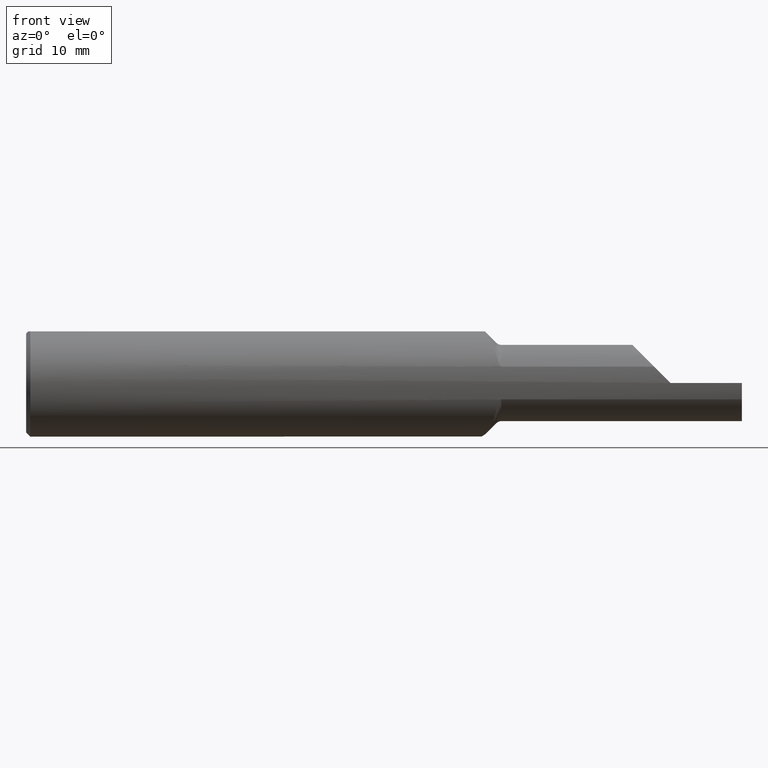
[diagram: clean part render]
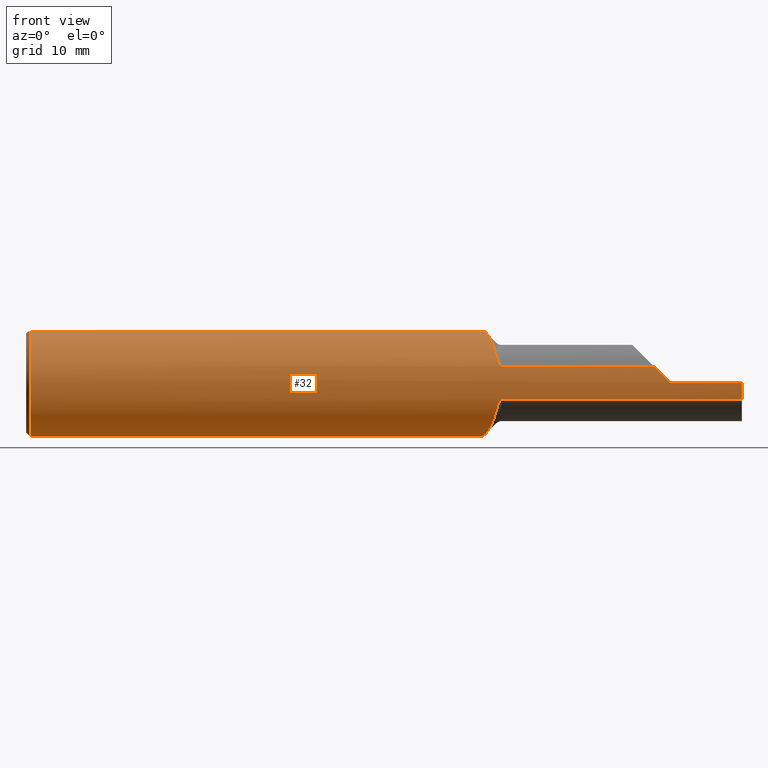
[diagram: same view with one face highlighted and labeled with its STEP entity id]
A machine part, front view. The second image highlights one B-rep face of the part: STEP entity #32.
In plain terms, the highlighted cylindrical surface (partial cylindrical patch) has radius 4.7587 mm, axis along (-1, -0, -0).
Its self-contained STEP definition (entity closure, byte-faithful):
#1 = VERTEX_POINT ( 'NONE', #487 ) ;
#3 = CARTESIAN_POINT ( 'NONE',  ( 1.660355339059327306, -0.1783697086546703892, -0.05730854678359931925 ) ) ;
#8 = CARTESIAN_POINT ( 'NONE',  ( 0.01500000000000079568, 0.000000000000000000, 0.000000000000000000 ) ) ;
#20 = CARTESIAN_POINT ( 'NONE',  ( 1.640253514619542052, -0.1553904236379950454, -0.1052844192764661180 ) ) ;
#23 = CARTESIAN_POINT ( 'NONE',  ( 0.01500000000000079568, 0.000000000000000000, -0.1873499999999999888 ) ) ;
#24 = LINE ( 'NONE', #95, #974 ) ;
#28 = AXIS2_PLACEMENT_3D ( 'NONE', #1058, #917, #246 ) ;
#32 = ADVANCED_FACE ( 'NONE', ( #580 ), #418, .T. ) ;
#33 = CARTESIAN_POINT ( 'NONE',  ( 1.651070010791237941, -0.1744205134096490917, 0.06848301048429156213 ) ) ;
#34 = CARTESIAN_POINT ( 'NONE',  ( 1.556401947506067307, 0.1100286960033596273, -0.1517643969169448492 ) ) ;
#40 = LINE ( 'NONE', #217, #394 ) ;
#43 = CARTESIAN_POINT ( 'NONE',  ( 1.659353365409087733, -0.1783697086546703614, 0.05730854678359929150 ) ) ;
#44 = CIRCLE ( 'NONE', #269, 0.1873499999999999888 ) ;
#50 = CARTESIAN_POINT ( 'NONE',  ( 1.642677669529663653, -0.1612201248618145288, 0.09543633395903748651 ) ) ;
#51 = CARTESIAN_POINT ( 'NONE',  ( 1.575940143936352289, 0.03734480488786581787, -0.1840042851911080080 ) ) ;
#52 = B_SPLINE_CURVE_WITH_KNOTS ( 'NONE', 3,
 ( #180, #513, #849, #1047, #122, #292, #197, #787, #528, #873 ),
 .UNSPECIFIED., .F., .F.,
 ( 4, 2, 2, 2, 4 ),
 ( 0.0002102370372012421680, 0.001095323943326031047, 0.001980410849450820170, 0.002865497755575608860, 0.003750584661700397983 ),
 .UNSPECIFIED. ) ;
#58 = CARTESIAN_POINT ( 'NONE',  ( 1.586382994110499212, 0.001209398411742338125, -0.1877358743806105124 ) ) ;
#69 = CARTESIAN_POINT ( 'NONE',  ( 1.540172451185788161, 0.1753186121875665027, 0.06724932333031378995 ) ) ;
#70 = CARTESIAN_POINT ( 'NONE',  ( 1.604144082012933792, -0.05583534595055380384, 0.1788559179870659044 ) ) ;
#89 = DIRECTION ( 'NONE',  ( 0.000000000000000000, 0.000000000000000000, -1.000000000000000000 ) ) ;
#95 = CARTESIAN_POINT ( 'NONE',  ( 2.015000000000000124, -0.1783697086546703892, 0.05730854678359931925 ) ) ;
#100 = CARTESIAN_POINT ( 'NONE',  ( 1.642677669529665652, -0.1612201248618108651, -0.09543633395904418948 ) ) ;
#102 = CARTESIAN_POINT ( 'NONE',  ( 1.644297910623151004, -0.1651165431336509282, -0.08885413392850002867 ) ) ;
#107 = CARTESIAN_POINT ( 'NONE',  ( 1.602489247483494861, -0.05073361804563106953, 0.1803500000000000381 ) ) ;
#114 = EDGE_CURVE ( 'NONE', #554, #823, #24, .T. ) ;
#116 = AXIS2_PLACEMENT_3D ( 'NONE', #8, #676, #436 ) ;
#122 = CARTESIAN_POINT ( 'NONE',  ( 1.622098171548490342, -0.1081911845720502224, 0.1533658358000759558 ) ) ;
#126 = DIRECTION ( 'NONE',  ( -1.000000000000000000, -0.000000000000000000, -0.000000000000000000 ) ) ;
#129 = CARTESIAN_POINT ( 'NONE',  ( 1.658430780961237527, -0.1782286057343102359, 0.05774920339049800094 ) ) ;
#135 = VERTEX_POINT ( 'NONE', #1020 ) ;
#136 = CARTESIAN_POINT ( 'NONE',  ( 1.579350153915703547, 0.02533118765943560141, -0.1860229881109675409 ) ) ;
#138 = VERTEX_POINT ( 'NONE', #596 ) ;
#143 = VERTEX_POINT ( 'NONE', #687 ) ;
#146 = CARTESIAN_POINT ( 'NONE',  ( 1.550080258543535372, 0.1348995831369800835, 0.1306165108605437941 ) ) ;
#155 = CARTESIAN_POINT ( 'NONE',  ( 1.537801414367355735, 0.1852400666705823484, 0.03079028734493004585 ) ) ;
#162 = CARTESIAN_POINT ( 'NONE',  ( 1.602489247483494861, -0.05073361804563106953, 0.1803500000000000381 ) ) ;
#178 = CARTESIAN_POINT ( 'NONE',  ( 1.608423102835126128, -0.06889107032234724481, -0.1745768971648735401 ) ) ;
#180 = CARTESIAN_POINT ( 'NONE',  ( 1.604968261256594531, -0.05834999999999980480, 0.1780317387434050824 ) ) ;
#197 = CARTESIAN_POINT ( 'NONE',  ( 1.631692117238095818, -0.1338399153164696320, 0.1315807004239949174 ) ) ;
#202 = CARTESIAN_POINT ( 'NONE',  ( 1.552626747636566718, 0.1247708322425330058, -0.1403109275308249970 ) ) ;
#207 = CARTESIAN_POINT ( 'NONE',  ( 1.537709081643609199, 0.1856286585800343558, -0.02610982525124901088 ) ) ;
#209 = ORIENTED_EDGE ( 'NONE', *, *, #653, .F. ) ;
#210 = CARTESIAN_POINT ( 'NONE',  ( 1.656875481135652528, -0.1778427423524751860, 0.05892677987795050254 ) ) ;
#214 = CARTESIAN_POINT ( 'NONE',  ( 1.653568594541375170, -0.1762593147278525563, 0.06352779236237583727 ) ) ;
#217 = CARTESIAN_POINT ( 'NONE',  ( 2.500000000000000000, -0.05073361804563106953, 0.1803500000000000381 ) ) ;
#218 = CIRCLE ( 'NONE', #28, 0.1873499999999999888 ) ;
#223 = CARTESIAN_POINT ( 'NONE',  ( 1.537216210840755659, 0.1877021456528152055, 0.005461557674737466984 ) ) ;
#241 = CARTESIAN_POINT ( 'NONE',  ( 1.565888065801315898, 0.07390163537251719095, 0.1726011362085436152 ) ) ;
#246 = DIRECTION ( 'NONE',  ( 0.000000000000000000, 0.000000000000000000, -1.000000000000000000 ) ) ;
#250 = CARTESIAN_POINT ( 'NONE',  ( 1.651088181464120952, -0.1744387181921878693, -0.06843700474515748700 ) ) ;
#262 = CARTESIAN_POINT ( 'NONE',  ( 1.618767343164416506, -0.09892104215541576429, -0.1594977428790703700 ) ) ;
#269 = AXIS2_PLACEMENT_3D ( 'NONE', #1077, #663, #89 ) ;
#281 = CARTESIAN_POINT ( 'NONE',  ( 1.597483243306722311, -0.03515109766243801337, -0.1844245065291032493 ) ) ;
#286 = CARTESIAN_POINT ( 'NONE',  ( 1.538563873827742734, 0.1820409455122642406, -0.04473493752744744922 ) ) ;
#292 = CARTESIAN_POINT ( 'NONE',  ( 1.628598829545118809, -0.1257548260562134090, 0.1393274407047326302 ) ) ;
#299 = DIRECTION ( 'NONE',  ( -1.000000000000000000, -0.000000000000000000, -0.000000000000000000 ) ) ;
#302 = EDGE_CURVE ( 'NONE', #143, #593, #556, .T. ) ;
#308 = ORIENTED_EDGE ( 'NONE', *, *, #302, .F. ) ;
#315 = CARTESIAN_POINT ( 'NONE',  ( 2.250000000000000000, -0.1873488724278853934, 0.0006500000000000633960 ) ) ;
#323 = CARTESIAN_POINT ( 'NONE',  ( 1.642677669529663653, -0.1612201248618145288, 0.09543633395903748651 ) ) ;
#330 = ORIENTED_EDGE ( 'NONE', *, *, #1045, .T. ) ;
#349 = CARTESIAN_POINT ( 'NONE',  ( 1.637558038309074870, -0.1487564718944882347, -0.1144511678342007427 ) ) ;
#368 = CARTESIAN_POINT ( 'NONE',  ( 1.544523128465643547, 0.1573629312742697017, -0.1024417037855123169 ) ) ;
#375 = CARTESIAN_POINT ( 'NONE',  ( 1.601217303120553437, -0.04690544817629504343, -0.1817826968794463982 ) ) ;
#388 = CARTESIAN_POINT ( 'NONE',  ( 1.541376529822215957, 0.1703085496625235118, 0.07907260733930798757 ) ) ;
#393 = DIRECTION ( 'NONE',  ( -1.000000000000000000, -0.000000000000000000, -0.000000000000000000 ) ) ;
#394 = VECTOR ( 'NONE', #126, 39.37007874015748143 ) ;
#404 = CARTESIAN_POINT ( 'NONE',  ( 2.193341453216400616, -0.1783697086546704724, 0.05730854678359917354 ) ) ;
#409 = CARTESIAN_POINT ( 'NONE',  ( 1.568968547943675240, 0.06250301213542802659, 0.1770391935437745090 ) ) ;
#415 = CARTESIAN_POINT ( 'NONE',  ( 1.649768993697487085, -0.1730593490829002434, -0.07186319716290832937 ) ) ;
#416 = B_SPLINE_CURVE_WITH_KNOTS ( 'NONE', 3,
 ( #162, #492, #70, #831 ),
 .UNSPECIFIED., .F., .F.,
 ( 4, 4 ),
 ( 7.627425471845128801E-07, 0.0002102370372012421680 ),
 .UNSPECIFIED. ) ;
#418 = CYLINDRICAL_SURFACE ( 'NONE', #955, 0.1873499999999999888 ) ;
#422 = EDGE_CURVE ( 'NONE', #1074, #527, #416, .T. ) ;
#426 = CARTESIAN_POINT ( 'NONE',  ( 1.628571360006487279, -0.1256812272418073029, -0.1393892198534538995 ) ) ;
#432 = CARTESIAN_POINT ( 'NONE',  ( 1.611924480952844574, -0.07925979411789339790, -0.1701257993398437030 ) ) ;
#435 = CARTESIAN_POINT ( 'NONE',  ( 1.654519358739342305, -0.1768576582156871357, -0.06183736089970497118 ) ) ;
#436 = DIRECTION ( 'NONE',  ( 0.000000000000000000, 0.000000000000000000, -1.000000000000000000 ) ) ;
#438 = VERTEX_POINT ( 'NONE', #735 ) ;
#443 = CARTESIAN_POINT ( 'NONE',  ( 1.566243151538837974, 0.07258185416455241457, -0.1731530736261578940 ) ) ;
#448 = CARTESIAN_POINT ( 'NONE',  ( 1.561874062265818930, 0.08903011435619233305, -0.1649581271952395289 ) ) ;
#451 = EDGE_CURVE ( 'NONE', #906, #438, #650, .T. ) ;
#452 = CARTESIAN_POINT ( 'NONE',  ( 1.644298152198937935, -0.1651171240844257482, 0.08885315253124452528 ) ) ;
#467 = CARTESIAN_POINT ( 'NONE',  ( 1.569337034764407557, 0.06115010668878911870, -0.1775186634490950599 ) ) ;
#469 = ORIENTED_EDGE ( 'NONE', *, *, #745, .F. ) ;
#471 = B_SPLINE_CURVE_WITH_KNOTS ( 'NONE', 3,
 ( #100, #102, #923, #415, #250, #752, #435, #1008, #933, #1021, #843, #3 ),
 .UNSPECIFIED., .F., .F.,
 ( 4, 2, 2, 2, 2, 4 ),
 ( 0.000000000000000000, 0.0005951497663342988648, 0.0008927246495014492730, 0.001041512091085023935, 0.001115905811876804869, 0.001190299532668586020 ),
 .UNSPECIFIED. ) ;
#478 = VERTEX_POINT ( 'NONE', #480 ) ;
#479 = CARTESIAN_POINT ( 'NONE',  ( 1.572226761124839500, 0.05073361804563112504, 0.1803500000000000381 ) ) ;
#480 = CARTESIAN_POINT ( 'NONE',  ( 2.250000000000000000, -0.1873488724278853934, 0.0006500000000000633960 ) ) ;
#482 = DIRECTION ( 'NONE',  ( 0.000000000000000000, 0.000000000000000000, 1.000000000000000000 ) ) ;
#486 = CARTESIAN_POINT ( 'NONE',  ( 1.604968261256594531, -0.05834999999999980480, 0.1780317387434050824 ) ) ;
#487 = CARTESIAN_POINT ( 'NONE',  ( 2.250000000000000000, -0.1873499999999999610, -6.429183357567478880E-17 ) ) ;
#491 = CARTESIAN_POINT ( 'NONE',  ( 2.500000000000000000, -0.1873499999999999888, -6.429183357567480113E-17 ) ) ;
#492 = CARTESIAN_POINT ( 'NONE',  ( 1.603317762031590155, -0.05329669918612119084, 0.1796289887463178303 ) ) ;
#493 = EDGE_CURVE ( 'NONE', #976, #143, #44, .T. ) ;
#494 = VERTEX_POINT ( 'NONE', #323 ) ;
#513 = CARTESIAN_POINT ( 'NONE',  ( 1.608450646806901752, -0.06897510976000130467, 0.1745493531930979170 ) ) ;
#527 = VERTEX_POINT ( 'NONE', #486 ) ;
#528 = CARTESIAN_POINT ( 'NONE',  ( 1.640249137328436690, -0.1553798969595269475, 0.1053022019421096939 ) ) ;
#533 = VECTOR ( 'NONE', #393, 39.37007874015748143 ) ;
#537 = CARTESIAN_POINT ( 'NONE',  ( 1.550366864174358428, 0.1337561031483593121, -0.1317747899903142506 ) ) ;
#541 = CARTESIAN_POINT ( 'NONE',  ( 1.656236883445896035, -0.1776066927686673624, 0.05963654009861620725 ) ) ;
#542 = CARTESIAN_POINT ( 'NONE',  ( 1.540339301653355530, 0.1746239680236502667, -0.06904456622799000354 ) ) ;
#547 = DIRECTION ( 'NONE',  ( 0.000000000000000000, 0.000000000000000000, 1.000000000000000000 ) ) ;
#554 = VERTEX_POINT ( 'NONE', #672 ) ;
#556 = LINE ( 'NONE', #629, #744 ) ;
#557 = ORIENTED_EDGE ( 'NONE', *, *, #422, .F. ) ;
#558 = ORIENTED_EDGE ( 'NONE', *, *, #451, .T. ) ;
#578 = EDGE_CURVE ( 'NONE', #135, #981, #886, .T. ) ;
#579 = DIRECTION ( 'NONE',  ( 1.000000000000000000, 0.000000000000000000, 0.000000000000000000 ) ) ;
#580 = FACE_OUTER_BOUND ( 'NONE', #706, .T. ) ;
#583 = CARTESIAN_POINT ( 'NONE',  ( 1.560048160486880331, 0.09592332149754141668, 0.1614042140840567241 ) ) ;
#593 = VERTEX_POINT ( 'NONE', #765 ) ;
#596 = CARTESIAN_POINT ( 'NONE',  ( 0.01499999999999942525, -0.05073361804563293609, 0.1803500000000000381 ) ) ;
#604 = CARTESIAN_POINT ( 'NONE',  ( 2.500000000000000000, -0.1873499999999998222, -6.429183357567480113E-17 ) ) ;
#612 = CARTESIAN_POINT ( 'NONE',  ( 2.250000000000000000, 0.000000000000000000, 0.000000000000000000 ) ) ;
#620 = ORIENTED_EDGE ( 'NONE', *, *, #807, .T. ) ;
#623 = CARTESIAN_POINT ( 'NONE',  ( 1.604968261256594531, -0.05834999999999977011, -0.1780317387434050269 ) ) ;
#625 = ORIENTED_EDGE ( 'NONE', *, *, #767, .T. ) ;
#628 = EDGE_CURVE ( 'NONE', #138, #647, #1061, .T. ) ;
#629 = CARTESIAN_POINT ( 'NONE',  ( 2.015000000000000124, -0.1783697086546703892, -0.05730854678359931925 ) ) ;
#647 = VERTEX_POINT ( 'NONE', #23 ) ;
#650 = LINE ( 'NONE', #991, #833 ) ;
#651 = ORIENTED_EDGE ( 'NONE', *, *, #707, .T. ) ;
#653 = EDGE_CURVE ( 'NONE', #527, #494, #52, .T. ) ;
#655 = ORIENTED_EDGE ( 'NONE', *, *, #628, .T. ) ;
#657 = CARTESIAN_POINT ( 'NONE',  ( 2.193341453216400616, -0.1783697086546704724, 0.05730854678359917354 ) ) ;
#663 = DIRECTION ( 'NONE',  ( 1.000000000000000000, 0.000000000000000000, 0.000000000000000000 ) ) ;
#665 = ORIENTED_EDGE ( 'NONE', *, *, #578, .F. ) ;
#672 = CARTESIAN_POINT ( 'NONE',  ( 1.660355339059327306, -0.1783697086546703892, 0.05730854678359931925 ) ) ;
#676 = DIRECTION ( 'NONE',  ( 1.000000000000000000, -0.000000000000000000, -0.000000000000000000 ) ) ;
#686 = B_SPLINE_CURVE_WITH_KNOTS ( 'NONE', 3,
 ( #623, #375, #281, #879, #58, #136, #51, #467, #443, #448, #949, #700, #34, #202, #537, #869, #368, #703, #542, #1041, #286, #961, #207, #830, #223, #155, #998, #69, #388, #899, #748, #146, #1065, #813, #583, #241, #409, #479 ),
 .UNSPECIFIED., .F., .F.,
 ( 4, 2, 2, 2, 2, 2, 2, 2, 2, 2, 2, 2, 2, 2, 2, 2, 2, 2, 4 ),
 ( 0.01237582103972411848, 0.01333573452915168787, 0.01429564801857925900, 0.01525556150800682839, 0.01621547499743439952, 0.01669543174214818335, 0.01717538848686197064, 0.01813530197628954524, 0.01909521546571711983, 0.02005512895514469443, 0.02053508569985848173, 0.02101504244457226556, 0.02197495593399984015, 0.02293486942342741475, 0.02389478291285498934, 0.02485469640228256394, 0.02581460989171013853, 0.02677452338113771313, 0.02773443687056528772 ),
 .UNSPECIFIED. ) ;
#687 = CARTESIAN_POINT ( 'NONE',  ( 2.500000000000000000, -0.1783697086546704169, -0.05730854678359924986 ) ) ;
#700 = CARTESIAN_POINT ( 'NONE',  ( 1.557730347949919381, 0.1048826378083086430, -0.1553640687897693828 ) ) ;
#703 = CARTESIAN_POINT ( 'NONE',  ( 1.541543747921856111, 0.1696157454200302173, -0.08054746252562335063 ) ) ;
#706 = EDGE_LOOP ( 'NONE', ( #308, #784, #884, #772, #620, #1072, #330, #209, #557, #651, #655, #625, #558, #469, #665, #1083 ) ) ;
#707 = EDGE_CURVE ( 'NONE', #1074, #138, #40, .T. ) ;
#720 =( BOUNDED_CURVE ( )  B_SPLINE_CURVE ( 3, ( #315, #825, #727, #657 ),
 .UNSPECIFIED., .F., .T. ) 
 B_SPLINE_CURVE_WITH_KNOTS ( ( 4, 4 ),
 ( 4.715858429565467524, 5.023262387692848385 ),
 .UNSPECIFIED. ) 
 CURVE ( )  GEOMETRIC_REPRESENTATION_ITEM ( )  RATIONAL_B_SPLINE_CURVE ( ( 1.000000000000000000, 0.9921407246595839169, 0.9921407246595839169, 1.000000000000000000 ) ) 
 REPRESENTATION_ITEM ( '' )  );
#724 = EDGE_CURVE ( 'NONE', #1, #478, #819, .T. ) ;
#727 = CARTESIAN_POINT ( 'NONE',  ( 2.211690972638299613, -0.1842652404698978397, 0.03895902736170015618 ) ) ;
#735 = CARTESIAN_POINT ( 'NONE',  ( 1.572226761124839500, 0.05073361804563112504, 0.1803500000000000381 ) ) ;
#744 = VECTOR ( 'NONE', #299, 39.37007874015748143 ) ;
#745 = EDGE_CURVE ( 'NONE', #981, #438, #686, .T. ) ;
#748 = CARTESIAN_POINT ( 'NONE',  ( 1.546040650611814282, 0.1511645985810750326, 0.1113904599852968691 ) ) ;
#752 = CARTESIAN_POINT ( 'NONE',  ( 1.653599855037234168, -0.1762798456443806228, -0.06347090199729077398 ) ) ;
#765 = CARTESIAN_POINT ( 'NONE',  ( 1.660355339059327306, -0.1783697086546703892, -0.05730854678359931925 ) ) ;
#767 = EDGE_CURVE ( 'NONE', #647, #906, #218, .T. ) ;
#772 = ORIENTED_EDGE ( 'NONE', *, *, #724, .T. ) ;
#775 = CARTESIAN_POINT ( 'NONE',  ( 1.631727261142596141, -0.1339314736004380557, -0.1314911332688375734 ) ) ;
#784 = ORIENTED_EDGE ( 'NONE', *, *, #493, .F. ) ;
#787 = CARTESIAN_POINT ( 'NONE',  ( 1.637505379083926904, -0.1486247539658120398, 0.1146180010495327639 ) ) ;
#807 = EDGE_CURVE ( 'NONE', #478, #823, #720, .T. ) ;
#812 = EDGE_CURVE ( 'NONE', #976, #1, #893, .T. ) ;
#813 = CARTESIAN_POINT ( 'NONE',  ( 1.557307602494414356, 0.1064794760884438252, 0.1546452818744088187 ) ) ;
#819 = CIRCLE ( 'NONE', #994, 0.1873499999999999888 ) ;
#823 = VERTEX_POINT ( 'NONE', #404 ) ;
#825 = CARTESIAN_POINT ( 'NONE',  ( 2.230726762412658548, -0.1872820046412290718, 0.01992323758734154335 ) ) ;
#827 = CARTESIAN_POINT ( 'NONE',  ( 2.500000000000000000, 0.000000000000000000, 0.000000000000000000 ) ) ;
#830 = CARTESIAN_POINT ( 'NONE',  ( 1.537233112653664913, 0.1876308245808173403, -0.007313932636928896329 ) ) ;
#831 = CARTESIAN_POINT ( 'NONE',  ( 1.604968261256594531, -0.05834999999999980480, 0.1780317387434050824 ) ) ;
#833 = VECTOR ( 'NONE', #579, 39.37007874015748143 ) ;
#843 = CARTESIAN_POINT ( 'NONE',  ( 1.659362302432487501, -0.1783697086547828548, -0.05730854678350855852 ) ) ;
#849 = CARTESIAN_POINT ( 'NONE',  ( 1.611895869629350830, -0.07917488098667746499, 0.1701614833739456267 ) ) ;
#855 = CARTESIAN_POINT ( 'NONE',  ( 1.622103263110221016, -0.1082043198593513056, -0.1533523741457448741 ) ) ;
#856 = DIRECTION ( 'NONE',  ( 1.000000000000000000, 0.000000000000000000, 0.000000000000000000 ) ) ;
#859 = CARTESIAN_POINT ( 'NONE',  ( 1.654482436652326083, -0.1768381092552934464, 0.06189371971083567486 ) ) ;
#869 = CARTESIAN_POINT ( 'NONE',  ( 1.546320311736755215, 0.1500294446420622763, -0.1129002043701441416 ) ) ;
#873 = CARTESIAN_POINT ( 'NONE',  ( 1.642677669529663653, -0.1612201248618145288, 0.09543633395903748651 ) ) ;
#877 = CARTESIAN_POINT ( 'NONE',  ( 1.649748379481699168, -0.1730365193890565090, 0.07191781888006566759 ) ) ;
#879 = CARTESIAN_POINT ( 'NONE',  ( 1.590038752404291822, -0.01100734393750732107, -0.1874215480002737466 ) ) ;
#884 = ORIENTED_EDGE ( 'NONE', *, *, #812, .T. ) ;
#886 = B_SPLINE_CURVE_WITH_KNOTS ( 'NONE', 3,
 ( #930, #20, #349, #775, #426, #855, #262, #432, #178, #1019 ),
 .UNSPECIFIED., .F., .F.,
 ( 4, 2, 2, 2, 4 ),
 ( 0.008839285664186640259, 0.009723419508071009382, 0.01060755335195538024, 0.01149168719583974936, 0.01237582103972411848 ),
 .UNSPECIFIED. ) ;
#893 = LINE ( 'NONE', #491, #533 ) ;
#899 = CARTESIAN_POINT ( 'NONE',  ( 1.544308147217179572, 0.1582425620373411057, 0.1010780435082065110 ) ) ;
#906 = VERTEX_POINT ( 'NONE', #937 ) ;
#908 = EDGE_CURVE ( 'NONE', #135, #593, #471, .T. ) ;
#917 = DIRECTION ( 'NONE',  ( 1.000000000000000000, -0.000000000000000000, -0.000000000000000000 ) ) ;
#923 = CARTESIAN_POINT ( 'NONE',  ( 1.646169724070546181, -0.1685762960924687692, -0.08208163340012657183 ) ) ;
#930 = CARTESIAN_POINT ( 'NONE',  ( 1.642677669529665652, -0.1612201248618108651, -0.09543633395904418948 ) ) ;
#933 = CARTESIAN_POINT ( 'NONE',  ( 1.656911505120929773, -0.1778535538483544953, -0.05889400129952070823 ) ) ;
#937 = CARTESIAN_POINT ( 'NONE',  ( 0.01500000000000079568, 0.05073361804563106953, 0.1803500000000000381 ) ) ;
#943 = CARTESIAN_POINT ( 'NONE',  ( 1.604968261256594531, -0.05834999999999977011, -0.1780317387434050269 ) ) ;
#949 = CARTESIAN_POINT ( 'NONE',  ( 1.560463333522016383, 0.09439550663752122039, -0.1619501463759349114 ) ) ;
#955 = AXIS2_PLACEMENT_3D ( 'NONE', #827, #992, #482 ) ;
#961 = CARTESIAN_POINT ( 'NONE',  ( 1.537942788268092498, 0.1846460632819054148, -0.03234117797913937942 ) ) ;
#971 = DIRECTION ( 'NONE',  ( -1.000000000000000000, -0.000000000000000000, -0.000000000000000000 ) ) ;
#974 = VECTOR ( 'NONE', #856, 39.37007874015748143 ) ;
#976 = VERTEX_POINT ( 'NONE', #604 ) ;
#981 = VERTEX_POINT ( 'NONE', #943 ) ;
#991 = CARTESIAN_POINT ( 'NONE',  ( 2.500000000000000000, 0.05073361804563106953, 0.1803500000000000381 ) ) ;
#992 = DIRECTION ( 'NONE',  ( -1.000000000000000000, -0.000000000000000000, -0.000000000000000000 ) ) ;
#994 = AXIS2_PLACEMENT_3D ( 'NONE', #612, #971, #547 ) ;
#998 = CARTESIAN_POINT ( 'NONE',  ( 1.538393214463352310, 0.1827501551820268078, 0.04314473373083428653 ) ) ;
#1008 = CARTESIAN_POINT ( 'NONE',  ( 1.656263810976656758, -0.1776167352753859341, -0.05960650000845366808 ) ) ;
#1017 = B_SPLINE_CURVE_WITH_KNOTS ( 'NONE', 3,
 ( #1050, #43, #129, #210, #541, #859, #214, #33, #877, #1034, #452, #50 ),
 .UNSPECIFIED., .F., .F.,
 ( 4, 2, 2, 2, 2, 4 ),
 ( 0.000000000000000000, 7.502229733565968890E-05, 0.0001500445946713193778, 0.0003000891893426380509, 0.0006001783786852751259, 0.001200356757370543096 ),
 .UNSPECIFIED. ) ;
#1019 = CARTESIAN_POINT ( 'NONE',  ( 1.604968261256594531, -0.05834999999999977011, -0.1780317387434050269 ) ) ;
#1020 = CARTESIAN_POINT ( 'NONE',  ( 1.642677669529665652, -0.1612201248618108651, -0.09543633395904418948 ) ) ;
#1021 = CARTESIAN_POINT ( 'NONE',  ( 1.658448095044418480, -0.1782309609829300645, -0.05774179208042246741 ) ) ;
#1034 = CARTESIAN_POINT ( 'NONE',  ( 1.646159917231948322, -0.1685583276048897849, 0.08211736450972897949 ) ) ;
#1041 = CARTESIAN_POINT ( 'NONE',  ( 1.538954375347812986, 0.1804053881614881283, -0.05093214486733151081 ) ) ;
#1045 = EDGE_CURVE ( 'NONE', #554, #494, #1017, .T. ) ;
#1047 = CARTESIAN_POINT ( 'NONE',  ( 1.618703818231176150, -0.09874118849380576768, 0.1596050434607466650 ) ) ;
#1050 = CARTESIAN_POINT ( 'NONE',  ( 1.660355339059327306, -0.1783697086546703892, 0.05730854678359931925 ) ) ;
#1058 = CARTESIAN_POINT ( 'NONE',  ( 0.01500000000000079568, 0.000000000000000000, 0.000000000000000000 ) ) ;
#1061 = CIRCLE ( 'NONE', #116, 0.1873499999999999888 ) ;
#1065 = CARTESIAN_POINT ( 'NONE',  ( 1.552344364721590431, 0.1258879061987051573, 0.1393028251938591422 ) ) ;
#1072 = ORIENTED_EDGE ( 'NONE', *, *, #114, .F. ) ;
#1074 = VERTEX_POINT ( 'NONE', #107 ) ;
#1077 = CARTESIAN_POINT ( 'NONE',  ( 2.500000000000000000, 0.000000000000000000, 0.000000000000000000 ) ) ;
#1083 = ORIENTED_EDGE ( 'NONE', *, *, #908, .T. ) ;